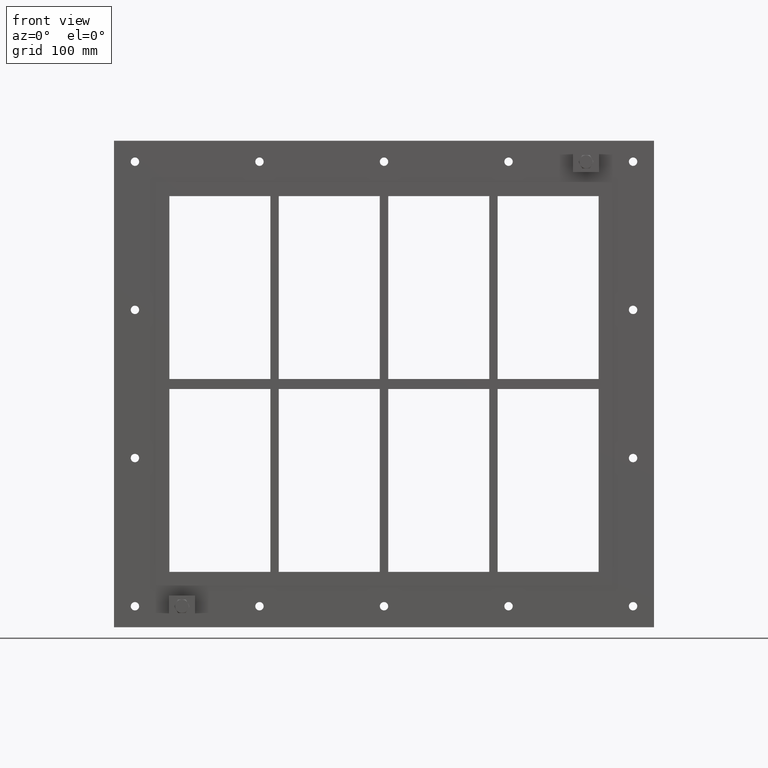
[diagram: clean part render]
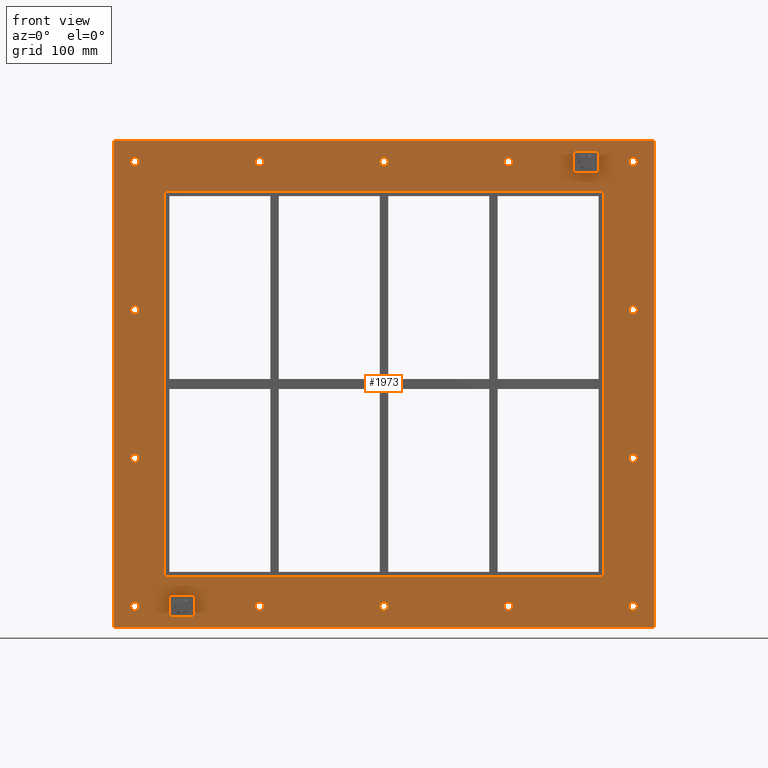
[diagram: same view with one face highlighted and labeled with its STEP entity id]
A machine part, front view. The second image highlights one B-rep face of the part: STEP entity #1973.
In plain terms, the highlighted planar face has unit normal (0, 1, 0).
Its self-contained STEP definition (entity closure, byte-faithful):
#84=CARTESIAN_POINT('',(-292.00000000000023,0.0,-265.0));
#85=VERTEX_POINT('',#84);
#86=CARTESIAN_POINT('',(-297.00000000000023,0.0,-265.0));
#87=DIRECTION('',(0.0,1.0,0.0));
#88=DIRECTION('',(1.0,0.0,0.0));
#89=AXIS2_PLACEMENT_3D('',#86,#87,#88);
#90=CIRCLE('',#89,5.0);
#91=EDGE_CURVE('',#85,#85,#90,.T.);
#112=CARTESIAN_POINT('',(301.99999999999983,0.0,-88.300000000000054));
#113=VERTEX_POINT('',#112);
#114=CARTESIAN_POINT('',(296.99999999999983,0.0,-88.300000000000054));
#115=DIRECTION('',(0.0,1.0,0.0));
#116=DIRECTION('',(1.0,0.0,0.0));
#117=AXIS2_PLACEMENT_3D('',#114,#115,#116);
#118=CIRCLE('',#117,5.0);
#119=EDGE_CURVE('',#113,#113,#118,.T.);
#140=CARTESIAN_POINT('',(-292.00000000000023,0.0,-88.300000000000054));
#141=VERTEX_POINT('',#140);
#142=CARTESIAN_POINT('',(-297.00000000000023,0.0,-88.300000000000054));
#143=DIRECTION('',(0.0,1.0,0.0));
#144=DIRECTION('',(1.0,0.0,0.0));
#145=AXIS2_PLACEMENT_3D('',#142,#143,#144);
#146=CIRCLE('',#145,5.0);
#147=EDGE_CURVE('',#141,#141,#146,.T.);
#168=CARTESIAN_POINT('',(301.99999999999983,0.0,88.399999999999892));
#169=VERTEX_POINT('',#168);
#170=CARTESIAN_POINT('',(296.99999999999983,0.0,88.399999999999892));
#171=DIRECTION('',(0.0,1.0,0.0));
#172=DIRECTION('',(1.0,0.0,0.0));
#173=AXIS2_PLACEMENT_3D('',#170,#171,#172);
#174=CIRCLE('',#173,5.0);
#175=EDGE_CURVE('',#169,#169,#174,.T.);
#196=CARTESIAN_POINT('',(-292.00000000000023,0.0,88.399999999999892));
#197=VERTEX_POINT('',#196);
#198=CARTESIAN_POINT('',(-297.00000000000023,0.0,88.399999999999892));
#199=DIRECTION('',(0.0,1.0,0.0));
#200=DIRECTION('',(1.0,0.0,0.0));
#201=AXIS2_PLACEMENT_3D('',#198,#199,#200);
#202=CIRCLE('',#201,5.0);
#203=EDGE_CURVE('',#197,#197,#202,.T.);
#224=CARTESIAN_POINT('',(-143.5000000000002,0.0,265.09999999999985));
#225=VERTEX_POINT('',#224);
#226=CARTESIAN_POINT('',(-148.5000000000002,0.0,265.09999999999985));
#227=DIRECTION('',(0.0,1.0,0.0));
#228=DIRECTION('',(1.0,0.0,0.0));
#229=AXIS2_PLACEMENT_3D('',#226,#227,#228);
#230=CIRCLE('',#229,5.0);
#231=EDGE_CURVE('',#225,#225,#230,.T.);
#252=CARTESIAN_POINT('',(-143.50000000000017,0.0,-265.00000000000006));
#253=VERTEX_POINT('',#252);
#254=CARTESIAN_POINT('',(-148.50000000000017,0.0,-265.00000000000006));
#255=DIRECTION('',(0.0,1.0,0.0));
#256=DIRECTION('',(1.0,0.0,0.0));
#257=AXIS2_PLACEMENT_3D('',#254,#255,#256);
#258=CIRCLE('',#257,5.0);
#259=EDGE_CURVE('',#253,#253,#258,.T.);
#280=CARTESIAN_POINT('',(4.999999999999822,0.0,265.09999999999985));
#281=VERTEX_POINT('',#280);
#282=CARTESIAN_POINT('',(-1.776357E-013,0.0,265.09999999999985));
#283=DIRECTION('',(0.0,1.0,0.0));
#284=DIRECTION('',(1.0,0.0,0.0));
#285=AXIS2_PLACEMENT_3D('',#282,#283,#284);
#286=CIRCLE('',#285,5.0);
#287=EDGE_CURVE('',#281,#281,#286,.T.);
#308=CARTESIAN_POINT('',(4.999999999999858,0.0,-265.00000000000006));
#309=VERTEX_POINT('',#308);
#310=CARTESIAN_POINT('',(-1.421085E-013,0.0,-265.00000000000006));
#311=DIRECTION('',(0.0,1.0,0.0));
#312=DIRECTION('',(1.0,0.0,0.0));
#313=AXIS2_PLACEMENT_3D('',#310,#311,#312);
#314=CIRCLE('',#313,5.0);
#315=EDGE_CURVE('',#309,#309,#314,.T.);
#336=CARTESIAN_POINT('',(153.49999999999983,0.0,265.09999999999985));
#337=VERTEX_POINT('',#336);
#338=CARTESIAN_POINT('',(148.49999999999983,0.0,265.09999999999985));
#339=DIRECTION('',(0.0,1.0,0.0));
#340=DIRECTION('',(1.0,0.0,0.0));
#341=AXIS2_PLACEMENT_3D('',#338,#339,#340);
#342=CIRCLE('',#341,5.0);
#343=EDGE_CURVE('',#337,#337,#342,.T.);
#364=CARTESIAN_POINT('',(153.49999999999989,0.0,-265.00000000000006));
#365=VERTEX_POINT('',#364);
#366=CARTESIAN_POINT('',(148.49999999999989,0.0,-265.00000000000006));
#367=DIRECTION('',(0.0,1.0,0.0));
#368=DIRECTION('',(1.0,0.0,0.0));
#369=AXIS2_PLACEMENT_3D('',#366,#367,#368);
#370=CIRCLE('',#369,5.0);
#371=EDGE_CURVE('',#365,#365,#370,.T.);
#392=CARTESIAN_POINT('',(301.99999999999989,0.0,-265.00000000000006));
#393=VERTEX_POINT('',#392);
#394=CARTESIAN_POINT('',(296.99999999999989,0.0,-265.00000000000006));
#395=DIRECTION('',(0.0,1.0,0.0));
#396=DIRECTION('',(1.0,0.0,0.0));
#397=AXIS2_PLACEMENT_3D('',#394,#395,#396);
#398=CIRCLE('',#397,5.0);
#399=EDGE_CURVE('',#393,#393,#398,.T.);
#420=CARTESIAN_POINT('',(-292.00000000000023,0.0,265.09999999999985));
#421=VERTEX_POINT('',#420);
#422=CARTESIAN_POINT('',(-297.00000000000023,0.0,265.09999999999985));
#423=DIRECTION('',(0.0,1.0,0.0));
#424=DIRECTION('',(1.0,0.0,0.0));
#425=AXIS2_PLACEMENT_3D('',#422,#423,#424);
#426=CIRCLE('',#425,5.0);
#427=EDGE_CURVE('',#421,#421,#426,.T.);
#448=CARTESIAN_POINT('',(301.99999999999983,0.0,265.09999999999985));
#449=VERTEX_POINT('',#448);
#450=CARTESIAN_POINT('',(296.99999999999983,0.0,265.09999999999985));
#451=DIRECTION('',(0.0,1.0,0.0));
#452=DIRECTION('',(1.0,0.0,0.0));
#453=AXIS2_PLACEMENT_3D('',#450,#451,#452);
#454=CIRCLE('',#453,5.0);
#455=EDGE_CURVE('',#449,#449,#454,.T.);
#1822=CARTESIAN_POINT('',(-2.786442E-014,0.0,-3.628180E-014));
#1823=DIRECTION('',(0.0,1.0,0.0));
#1824=DIRECTION('',(0.0,0.0,1.0));
#1825=AXIS2_PLACEMENT_3D('',#1822,#1823,#1824);
#1826=PLANE('',#1825);
#1827=CARTESIAN_POINT('',(-322.0,0.0,290.0));
#1828=VERTEX_POINT('',#1827);
#1829=CARTESIAN_POINT('',(321.99999999999994,0.0,290.0));
#1830=VERTEX_POINT('',#1829);
#1831=CARTESIAN_POINT('',(-322.0,0.0,290.0));
#1832=DIRECTION('',(1.0,0.0,0.0));
#1833=VECTOR('',#1832,644.0);
#1834=LINE('',#1831,#1833);
#1835=EDGE_CURVE('',#1828,#1830,#1834,.T.);
#1836=ORIENTED_EDGE('',*,*,#1835,.F.);
#1837=CARTESIAN_POINT('',(-322.0,0.0,-290.00000000000006));
#1838=VERTEX_POINT('',#1837);
#1839=CARTESIAN_POINT('',(-322.0,0.0,-290.00000000000006));
#1840=DIRECTION('',(0.0,0.0,1.0));
#1841=VECTOR('',#1840,580.00000000000011);
#1842=LINE('',#1839,#1841);
#1843=EDGE_CURVE('',#1838,#1828,#1842,.T.);
#1844=ORIENTED_EDGE('',*,*,#1843,.F.);
#1845=CARTESIAN_POINT('',(321.99999999999994,0.0,-290.00000000000006));
#1846=VERTEX_POINT('',#1845);
#1847=CARTESIAN_POINT('',(321.99999999999994,0.0,-290.00000000000006));
#1848=DIRECTION('',(-1.0,0.0,0.0));
#1849=VECTOR('',#1848,644.0);
#1850=LINE('',#1847,#1849);
#1851=EDGE_CURVE('',#1846,#1838,#1850,.T.);
#1852=ORIENTED_EDGE('',*,*,#1851,.F.);
#1853=CARTESIAN_POINT('',(321.99999999999994,0.0,290.0));
#1854=DIRECTION('',(0.0,0.0,-1.0));
#1855=VECTOR('',#1854,580.00000000000011);
#1856=LINE('',#1853,#1855);
#1857=EDGE_CURVE('',#1830,#1846,#1856,.T.);
#1858=ORIENTED_EDGE('',*,*,#1857,.F.);
#1859=EDGE_LOOP('',(#1836,#1844,#1852,#1858));
#1860=FACE_OUTER_BOUND('',#1859,.T.);
#1861=ORIENTED_EDGE('',*,*,#91,.T.);
#1862=EDGE_LOOP('',(#1861));
#1863=FACE_BOUND('',#1862,.T.);
#1864=ORIENTED_EDGE('',*,*,#119,.T.);
#1865=EDGE_LOOP('',(#1864));
#1866=FACE_BOUND('',#1865,.T.);
#1867=ORIENTED_EDGE('',*,*,#147,.T.);
#1868=EDGE_LOOP('',(#1867));
#1869=FACE_BOUND('',#1868,.T.);
#1870=ORIENTED_EDGE('',*,*,#175,.T.);
#1871=EDGE_LOOP('',(#1870));
#1872=FACE_BOUND('',#1871,.T.);
#1873=ORIENTED_EDGE('',*,*,#203,.T.);
#1874=EDGE_LOOP('',(#1873));
#1875=FACE_BOUND('',#1874,.T.);
#1876=ORIENTED_EDGE('',*,*,#231,.T.);
#1877=EDGE_LOOP('',(#1876));
#1878=FACE_BOUND('',#1877,.T.);
#1879=ORIENTED_EDGE('',*,*,#259,.T.);
#1880=EDGE_LOOP('',(#1879));
#1881=FACE_BOUND('',#1880,.T.);
#1882=ORIENTED_EDGE('',*,*,#287,.T.);
#1883=EDGE_LOOP('',(#1882));
#1884=FACE_BOUND('',#1883,.T.);
#1885=ORIENTED_EDGE('',*,*,#315,.T.);
#1886=EDGE_LOOP('',(#1885));
#1887=FACE_BOUND('',#1886,.T.);
#1888=ORIENTED_EDGE('',*,*,#343,.T.);
#1889=EDGE_LOOP('',(#1888));
#1890=FACE_BOUND('',#1889,.T.);
#1891=ORIENTED_EDGE('',*,*,#371,.T.);
#1892=EDGE_LOOP('',(#1891));
#1893=FACE_BOUND('',#1892,.T.);
#1894=ORIENTED_EDGE('',*,*,#399,.T.);
#1895=EDGE_LOOP('',(#1894));
#1896=FACE_BOUND('',#1895,.T.);
#1897=ORIENTED_EDGE('',*,*,#427,.T.);
#1898=EDGE_LOOP('',(#1897));
#1899=FACE_BOUND('',#1898,.T.);
#1900=ORIENTED_EDGE('',*,*,#455,.T.);
#1901=EDGE_LOOP('',(#1900));
#1902=FACE_BOUND('',#1901,.T.);
#1903=CARTESIAN_POINT('',(-260.0,0.0,230.00000000000003));
#1904=VERTEX_POINT('',#1903);
#1905=CARTESIAN_POINT('',(-262.0,0.0,228.00000000000006));
#1906=VERTEX_POINT('',#1905);
#1907=CARTESIAN_POINT('',(-260.0,0.0,228.00000000000006));
#1908=DIRECTION('',(0.0,-1.0,0.0));
#1909=DIRECTION('',(-0.707106781186548,0.0,0.707106781186548));
#1910=AXIS2_PLACEMENT_3D('',#1907,#1908,#1909);
#1911=CIRCLE('',#1910,2.0);
#1912=EDGE_CURVE('',#1904,#1906,#1911,.T.);
#1913=ORIENTED_EDGE('',*,*,#1912,.F.);
#1914=CARTESIAN_POINT('',(260.0,0.0,230.00000000000003));
#1915=VERTEX_POINT('',#1914);
#1916=CARTESIAN_POINT('',(260.0,0.0,230.00000000000003));
#1917=DIRECTION('',(-1.0,0.0,0.0));
#1918=VECTOR('',#1917,520.0);
#1919=LINE('',#1916,#1918);
#1920=EDGE_CURVE('',#1915,#1904,#1919,.T.);
#1921=ORIENTED_EDGE('',*,*,#1920,.F.);
#1922=CARTESIAN_POINT('',(262.0,0.0,228.00000000000006));
#1923=VERTEX_POINT('',#1922);
#1924=CARTESIAN_POINT('',(260.0,0.0,228.00000000000006));
#1925=DIRECTION('',(0.0,-1.0,0.0));
#1926=DIRECTION('',(0.707106781186548,0.0,0.707106781186548));
#1927=AXIS2_PLACEMENT_3D('',#1924,#1925,#1926);
#1928=CIRCLE('',#1927,2.0);
#1929=EDGE_CURVE('',#1923,#1915,#1928,.T.);
#1930=ORIENTED_EDGE('',*,*,#1929,.F.);
#1931=CARTESIAN_POINT('',(262.0,0.0,-228.00000000000006));
#1932=VERTEX_POINT('',#1931);
#1933=CARTESIAN_POINT('',(262.0,0.0,-228.00000000000006));
#1934=DIRECTION('',(0.0,0.0,1.0));
#1935=VECTOR('',#1934,456.00000000000011);
#1936=LINE('',#1933,#1935);
#1937=EDGE_CURVE('',#1932,#1923,#1936,.T.);
#1938=ORIENTED_EDGE('',*,*,#1937,.F.);
#1939=CARTESIAN_POINT('',(260.0,0.0,-230.00000000000003));
#1940=VERTEX_POINT('',#1939);
#1941=CARTESIAN_POINT('',(260.0,0.0,-228.00000000000006));
#1942=DIRECTION('',(0.0,-1.0,0.0));
#1943=DIRECTION('',(0.707106781186548,0.0,-0.707106781186548));
#1944=AXIS2_PLACEMENT_3D('',#1941,#1942,#1943);
#1945=CIRCLE('',#1944,2.0);
#1946=EDGE_CURVE('',#1940,#1932,#1945,.T.);
#1947=ORIENTED_EDGE('',*,*,#1946,.F.);
#1948=CARTESIAN_POINT('',(-260.0,0.0,-230.00000000000003));
#1949=VERTEX_POINT('',#1948);
#1950=CARTESIAN_POINT('',(-260.0,0.0,-230.00000000000003));
#1951=DIRECTION('',(1.0,0.0,0.0));
#1952=VECTOR('',#1951,520.0);
#1953=LINE('',#1950,#1952);
#1954=EDGE_CURVE('',#1949,#1940,#1953,.T.);
#1955=ORIENTED_EDGE('',*,*,#1954,.F.);
#1956=CARTESIAN_POINT('',(-262.0,0.0,-228.00000000000006));
#1957=VERTEX_POINT('',#1956);
#1958=CARTESIAN_POINT('',(-260.0,0.0,-228.00000000000006));
#1959=DIRECTION('',(0.0,-1.0,0.0));
#1960=DIRECTION('',(-0.707106781186548,0.0,-0.707106781186548));
#1961=AXIS2_PLACEMENT_3D('',#1958,#1959,#1960);
#1962=CIRCLE('',#1961,2.0);
#1963=EDGE_CURVE('',#1957,#1949,#1962,.T.);
#1964=ORIENTED_EDGE('',*,*,#1963,.F.);
#1965=CARTESIAN_POINT('',(-262.0,0.0,228.00000000000009));
#1966=DIRECTION('',(0.0,0.0,-1.0));
#1967=VECTOR('',#1966,456.00000000000011);
#1968=LINE('',#1965,#1967);
#1969=EDGE_CURVE('',#1906,#1957,#1968,.T.);
#1970=ORIENTED_EDGE('',*,*,#1969,.F.);
#1971=EDGE_LOOP('',(#1913,#1921,#1930,#1938,#1947,#1955,#1964,#1970));
#1972=FACE_BOUND('',#1971,.T.);
#1973=ADVANCED_FACE('',(#1860,#1863,#1866,#1869,#1872,#1875,#1878,#1881,#1884,#1887,#1890,#1893,#1896,#1899,#1902,#1972),#1826,.F.);